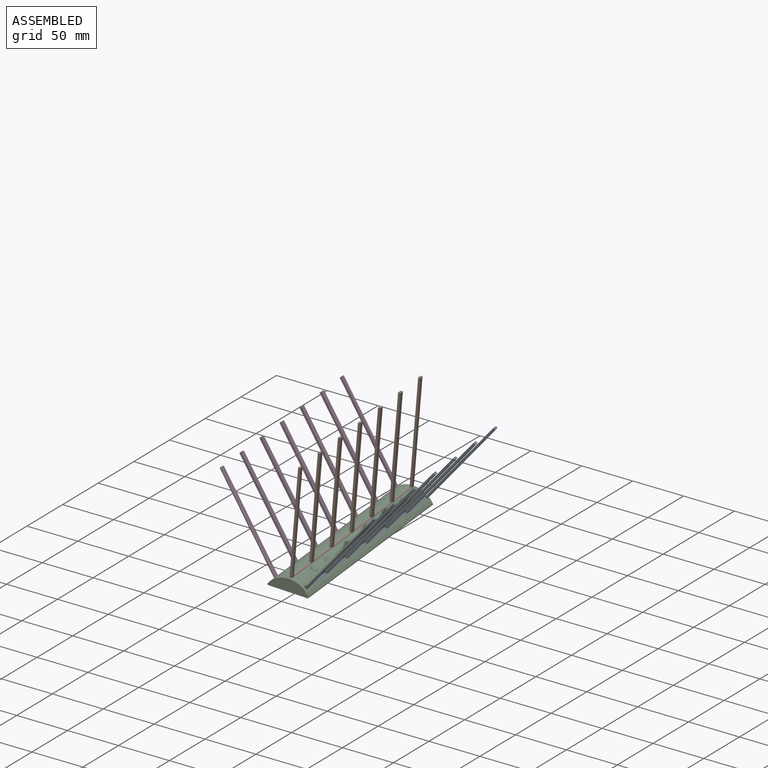
[diagram: assembled view]
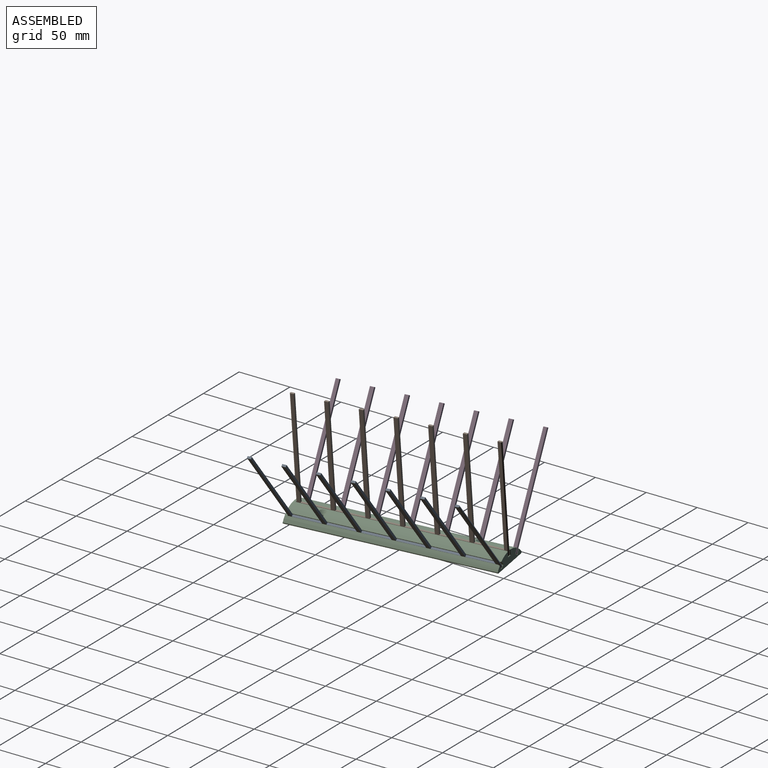
[diagram: assembled view, second angle]
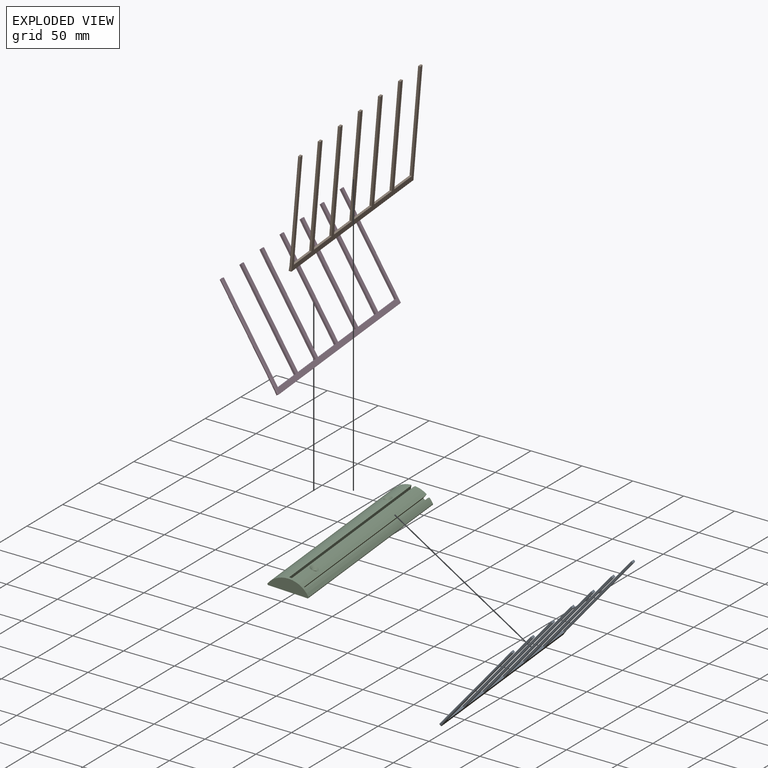
[diagram: exploded view]
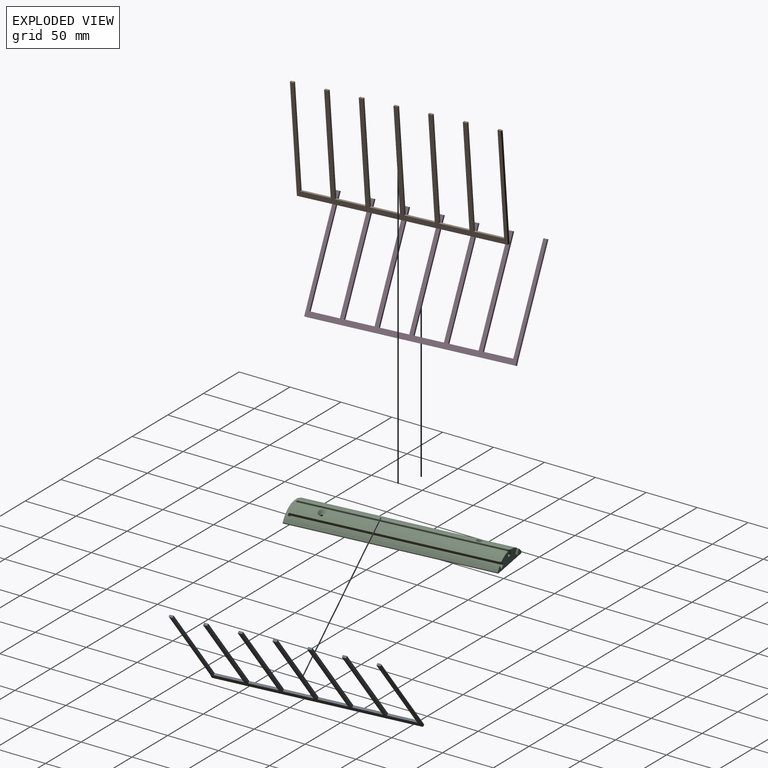
[diagram: exploded view, second angle]
ASSEMBLY  parts=4 mates=3
PART A: 45 faces, bbox 197.5x105.1x2.6 mm
  f0: plane 100x3mm, normal (0,0,1), area 300mm2, adj f34,f35,f36,f44
  f1: plane 100x4mm, normal (0,0,1), area 400mm2, adj f31,f32,f33,f36
  f2: plane 100x4mm, normal (0,0,1), area 400mm2, adj f28,f29,f30,f36
  f3: plane 100x4mm, normal (0,0,1), area 400mm2, adj f25,f26,f27,f36
  f4: plane 100x4mm, normal (0,0,1), area 400mm2, adj f22,f23,f24,f36
  f5: plane 100x4mm, normal (0,0,1), area 400mm2, adj f19,f20,f21,f36
  f6: plane 28.25x2.16mm, normal (0,1,0), area 61mm2, adj f16,f31,f34,f36
  f7: plane 28.25x2.16mm, normal (0,1,0), area 61mm2, adj f16,f28,f32,f36
  f8: plane 28.25x2.16mm, normal (0,1,0), area 61mm2, adj f16,f25,f29,f36
  f9: plane 28.25x2.16mm, normal (0,1,0), area 61mm2, adj f16,f22,f26,f36
  f10: plane 28.25x2.16mm, normal (0,1,0), area 61mm2, adj f16,f19,f23,f36
  f11: plane 28.25x2.16mm, normal (0,1,0), area 61mm2, adj f16,f17,f20,f36
  f12: plane 104x0.51mm, normal (-1,0,0), area 17.3mm2, adj f18,f37,f38,f39,f40
  f13: plane 195.5x2.6mm, normal (0,-1,0), area 507.8mm2, adj f16,f36,f38,f42
  f14: plane 104x0.51mm, normal (1,0,0), area 17.3mm2, adj f35,f41,f42,f43,f44
  f15: plane 100x3mm, normal (0,0,1), area 300mm2, adj f17,f18,f36,f40
  f16: plane 195.5x105mm, normal (0,0,-1), area 3577.5mm2, adj f6,f7,f8,f9,f10,f11,f13,f17
  f17: plane 100x2.16mm, normal (1,0,0), area 216mm2, adj f11,f15,f16,f18
  f18: plane 4x2.16mm, normal (0,1,0), area 8.2mm2, adj f12,f15,f16,f17,f37,f40
  f19: plane 100x2.16mm, normal (1,0,0), area 216mm2, adj f5,f10,f16,f21
  f20: plane 100x2.16mm, normal (-1,0,0), area 216mm2, adj f5,f11,f16,f21
  f21: plane 4x2.16mm, normal (0,1,0), area 8.6mm2, adj f5,f16,f19,f20
  f22: plane 100x2.16mm, normal (1,0,0), area 216mm2, adj f4,f9,f16,f24
  f23: plane 100x2.16mm, normal (-1,0,0), area 216mm2, adj f4,f10,f16,f24
  f24: plane 4x2.16mm, normal (0,1,0), area 8.6mm2, adj f4,f16,f22,f23
  f25: plane 100x2.16mm, normal (1,0,0), area 216mm2, adj f3,f8,f16,f27
  f26: plane 100x2.16mm, normal (-1,0,0), area 216mm2, adj f3,f9,f16,f27
  f27: plane 4x2.16mm, normal (0,1,0), area 8.6mm2, adj f3,f16,f25,f26
  f28: plane 100x2.16mm, normal (1,0,0), area 216mm2, adj f2,f7,f16,f30
  f29: plane 100x2.16mm, normal (-1,0,0), area 216mm2, adj f2,f8,f16,f30
  f30: plane 4x2.16mm, normal (0,1,0), area 8.6mm2, adj f2,f16,f28,f29
  f31: plane 100x2.16mm, normal (1,0,0), area 216mm2, adj f1,f6,f16,f33
  f32: plane 100x2.16mm, normal (-1,0,0), area 216mm2, adj f1,f7,f16,f33
  f33: plane 4x2.16mm, normal (0,1,0), area 8.6mm2, adj f1,f16,f31,f32
  f34: plane 100x2.16mm, normal (-1,0,0), area 216mm2, adj f0,f6,f16,f35
  f35: plane 4x2.16mm, normal (0,1,0), area 8.2mm2, adj f0,f14,f16,f34,f41,f44
  f36: plane 195.5x5mm, normal (0,0.09,1), area 981.2mm2, adj f0,f1,f2,f3,f4,f5,f6,f7
  f37: cylinder r=1mm len=105mm, axis (0,-1,0), area 164.4mm2, adj f12,f16,f18,f38
  f38: cylinder r=1mm len=2.6mm, axis (0,0,1), area 2.9mm2, adj f12,f13,f37,f39
  f39: cylinder r=1mm len=5.13mm, axis (0,1,-0.09), area 7.3mm2, adj f12,f36,f38,f40
  f40: cylinder r=1mm len=100.04mm, axis (0,1,0), area 157.1mm2, adj f12,f15,f18,f39
  f41: cylinder r=1mm len=105mm, axis (0,1,0), area 164.4mm2, adj f14,f16,f35,f42
  f42: cylinder r=1mm len=2.6mm, axis (0,0,-1), area 2.9mm2, adj f13,f14,f41,f43
  f43: cylinder r=1mm len=5.13mm, axis (0,1,-0.09), area 7.3mm2, adj f14,f36,f42,f44
  f44: cylinder r=1mm len=100.04mm, axis (0,-1,0), area 157.1mm2, adj f0,f14,f35,f43
PART B: same geometry as A
PART C: 41 faces, bbox 38.5x200x11.8 mm
  f0: cylinder r=22.83mm len=200mm, axis (0,1,0), area 7400.2mm2, adj f1,f3,f7,f10,f11,f12,f13,f14
  f1: bspline ~6.76x2.27mm, area 8mm2, adj f0,f2,f3
  f2: cylinder r=3.24mm len=3.26mm, axis (0,0,-1), area 0mm2, adj f1,f3
  f3: cone r=1.63mm half-angle=41deg, axis (0,0,1), area 50.2mm2, adj f0,f1,f2,f4
  f4: cylinder r=1.63mm len=8.15mm, axis (0,0,1), area 83.6mm2, adj f3,f5
  f5: plane 200x36.46mm, normal (0,0,-1), area 7275.4mm2, adj f4,f6,f32,f33,f34,f35
  f6: cylinder r=1.63mm len=8.15mm, axis (0,0,1), area 83.6mm2, adj f5,f40
  f7: plane 195.5x4.22mm, normal (0.87,0,0.5), area 952.6mm2, adj f0,f8,f10,f37
  f8: plane 197x2.95mm, normal (-0.57,0,0.82), area 591.5mm2, adj f7,f9,f10,f11,f12,f37
  f9: cylinder r=0.5mm len=4.11mm, axis (-0.82,0,-0.57), area 3.1mm2, adj f8,f12,f13,f35,f36,f37
  f10: plane 5.82x4.89mm, normal (0,1,0), area 13.8mm2, adj f0,f7,f8,f11
  f11: plane 195.5x4.1mm, normal (-0.82,0,-0.57), area 977.5mm2, adj f0,f8,f10,f12
  f12: plane 4.28x3.14mm, normal (-0.8,0.2,-0.56), area 8.1mm2, adj f0,f8,f9,f11,f13
  f13: cylinder r=0.5mm len=4.78mm, axis (-0.57,0,0.82), area 3.6mm2, adj f0,f9,f12,f35
  f14: cylinder r=0.5mm len=5.57mm, axis (0.09,0,1), area 3.6mm2, adj f0,f15,f17,f35
  f15: cylinder r=0.5mm len=4.67mm, axis (-1,0,0), area 3.1mm2, adj f14,f16,f17,f21,f22,f35
  f16: plane 197x3.6mm, normal (0,0,1), area 591.5mm2, adj f15,f17,f18,f19,f20,f21
  f17: plane 5.01x1.6mm, normal (0.98,0.2,-0.09), area 8.2mm2, adj f0,f14,f15,f16,f18
  f18: plane 195.5x5mm, normal (1,0,-0.09), area 981.2mm2, adj f0,f16,f17,f19
  f19: plane 5.04x3mm, normal (0,1,0), area 14mm2, adj f0,f16,f18,f20
  f20: plane 195.5x5mm, normal (-1,0,0), area 977.5mm2, adj f0,f16,f19,f21
  f21: plane 5.01x1.6mm, normal (-0.98,0.2,0), area 8.1mm2, adj f0,f15,f16,f20,f22
  f22: cylinder r=0.5mm len=5.48mm, axis (0,0,-1), area 3.6mm2, adj f0,f15,f21,f35
  f23: cylinder r=0.5mm len=4.78mm, axis (0.57,0,0.82), area 3.6mm2, adj f0,f24,f26,f35
  f24: cylinder r=0.5mm len=4.11mm, axis (-0.82,0,0.57), area 3.1mm2, adj f23,f25,f26,f30,f31,f35
  f25: plane 197x2.95mm, normal (0.57,0,0.82), area 591.5mm2, adj f24,f26,f27,f28,f29,f30
  f26: plane 4.28x3.14mm, normal (0.8,0.2,-0.56), area 8.1mm2, adj f0,f23,f24,f25,f27
  f27: plane 195.5x4.1mm, normal (0.82,0,-0.57), area 977.5mm2, adj f0,f25,f26,f28
  f28: plane 5.82x4.89mm, normal (0,1,0), area 13.8mm2, adj f0,f25,f27,f29
  f29: plane 195.5x4.22mm, normal (-0.87,0,0.5), area 952.6mm2, adj f0,f25,f28,f30
  f30: plane 4.41x2.68mm, normal (-0.85,0.2,0.49), area 7.9mm2, adj f0,f24,f25,f29,f31
  f31: cylinder r=0.5mm len=4.9mm, axis (-0.5,0,-0.87), area 3.5mm2, adj f0,f24,f30,f35
  f32: cylinder r=1mm len=200mm, axis (0,1,0), area 430.6mm2, adj f0,f5,f33,f35
  f33: plane 38.46x11.82mm, normal (0,-1,0), area 334.9mm2, adj f0,f5,f32,f34
  f34: cylinder r=1mm len=200mm, axis (0,1,0), area 430.6mm2, adj f0,f5,f33,f35
  f35: plane 38.46x11.73mm, normal (0,1,0), area 262.4mm2, adj f0,f5,f9,f13,f14,f15,f22,f23
  f36: cylinder r=0.5mm len=4.9mm, axis (0.5,0,-0.87), area 3.5mm2, adj f0,f9,f35,f37
  f37: plane 4.41x2.68mm, normal (0.85,0.2,0.49), area 7.9mm2, adj f0,f7,f8,f9,f36
  f38: bspline ~6.76x2.27mm, area 8mm2, adj f0,f39,f40
  f39: cylinder r=3.24mm len=3.26mm, axis (0,0,-1), area 0mm2, adj f38,f40
  f40: cone r=1.63mm half-angle=41deg, axis (0,0,1), area 52.3mm2, adj f0,f6,f38,f39
PART D: same geometry as A
PLACE A rot(axis=(0.64,0.69,0.33),147.2deg) t=(-81.64,-291.43,-56.34)mm
PLACE B rot(axis=(0.6,-0.54,-0.6),114.5deg) t=(-107.97,-95.53,-49.86)mm
PLACE C rot(axis=(0.06,0.71,0.7),7.1deg) t=(-129.29,-97.31,-54.83)mm
PLACE D rot(axis=(0.69,-0.63,-0.37),137.2deg) t=(-119.64,-96.51,-52.26)mm
MATE planar B.f36 <-> C.f18  axis (-0.98,-0.09,0.17) through (-101.61,-194.12,-48.28)mm
MATE planar D.f36 <-> C.f7  axis (-0.9,-0.07,-0.42) through (-114.43,-195.18,-52.41)mm
MATE planar A.f36 <-> C.f29  axis (0.82,0.08,-0.57) through (-86.73,-192.76,-54.84)mm
